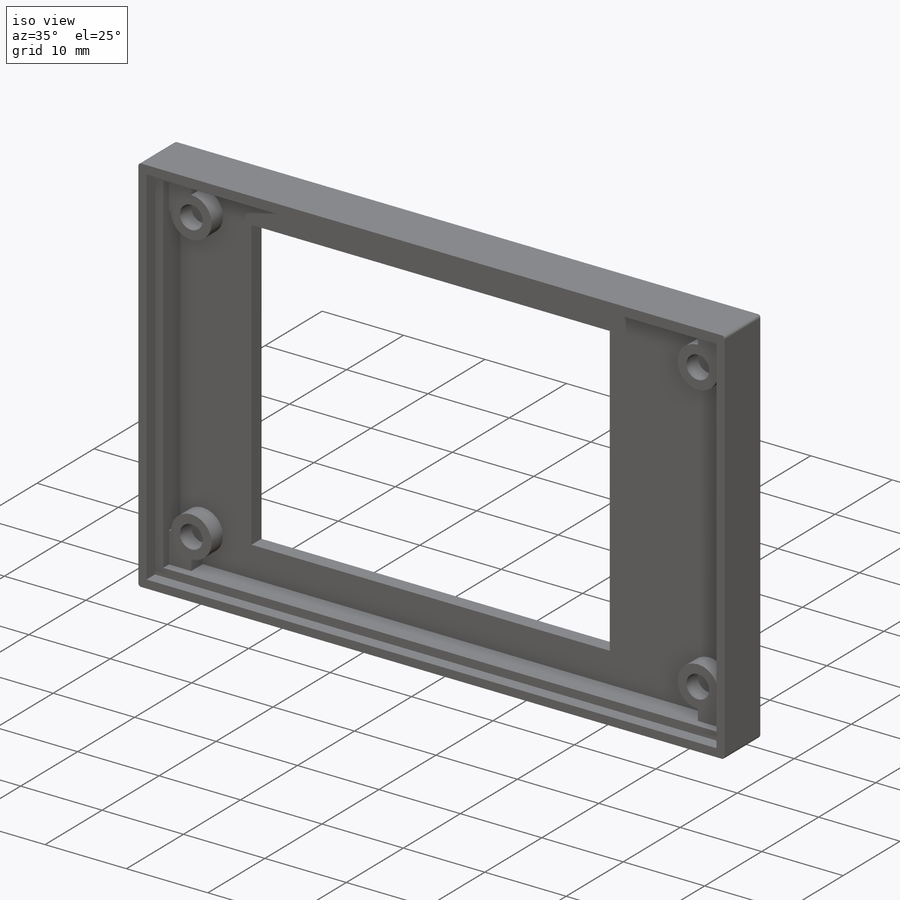
[diagram: iso view]
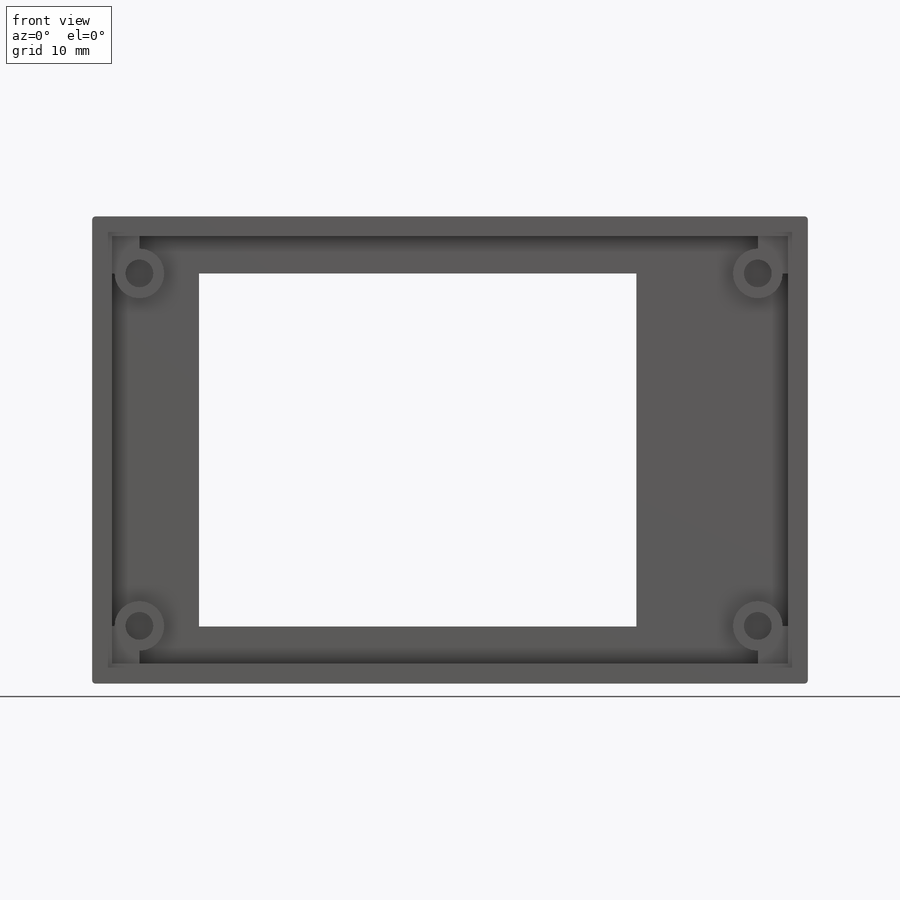
[diagram: front view]
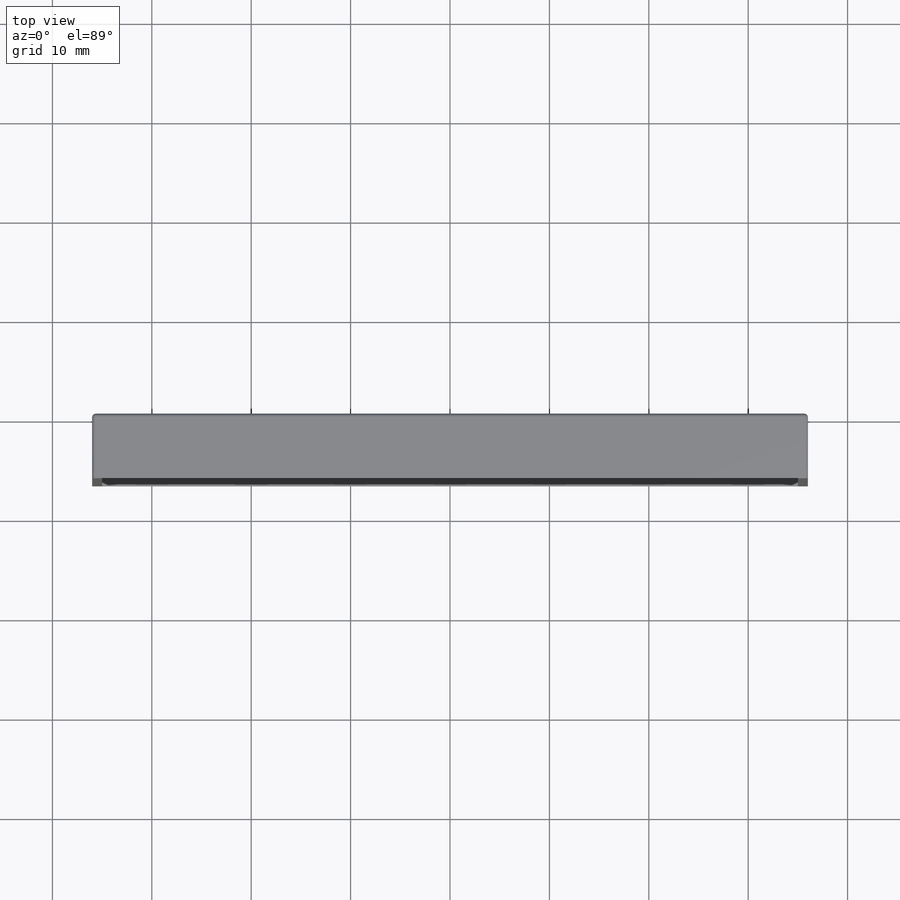
[diagram: top view]
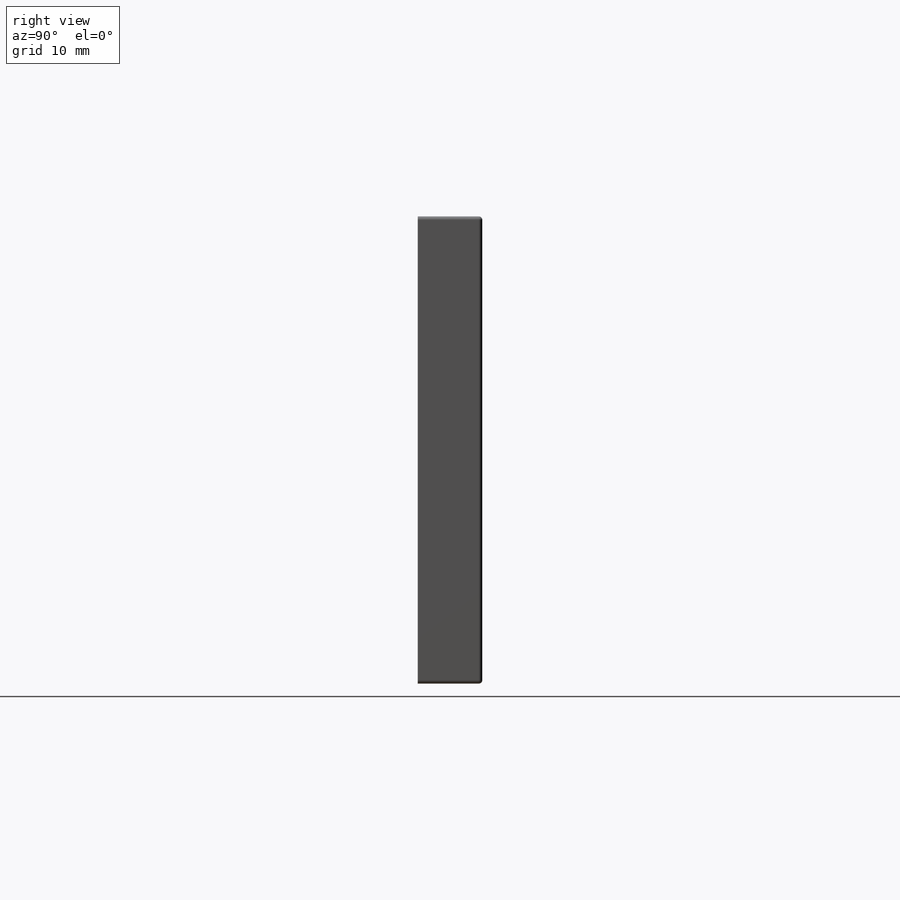
[diagram: right view]
SOLIDWORKS PART (.sldprt)
format: sldprt  version: not decoded by parser v0  size: 349,696 bytes
history: native  units: mm
features: sketch x6, extrude x3, cut_extrude x3, material x1, shell x1, fillet x1 (+12 scaffold rows collapsed)
feature tree (27):
  scaffold x12  (default folders/planes/origin — collapsed)
  material  "ABS"
  sketch  "Sketch1"  dims[D1=72.0mm D2=47.0mm]
  extrude  "Boss-Extrude1"  Depth=6.5mm
  shell  "Shell1"  Thickness=2mm
  sketch  "Sketch2"  dims[D1=35.5mm D2=44.0mm D3=17.75mm D4=10.75mm D5=35.5mm]
  cut_extrude  "Cut-Extrude1"  [1 undecoded]
  sketch  "Sketch3"  dims[D1=5.0mm D2=2.75mm D3=3.75mm D4=2.0 D5=2.0]
  extrude  "Boss-Extrude2"  Depth=2mm
  sketch  "Sketch5"  dims[c1.D3=4.5mm c1.D1=0.0mm c1.D2=0.0mm c2.D3=0.0mm]
  extrude  "Boss-Extrude3"  Depth=2mm
  sketch  "Sketch6"  dims[D1=2.8mm D2=2.8mm D3=2.8mm D4=2.8mm]
  cut_extrude  "Cut-Extrude2"  Depth=2mm
  sketch  "Sketch7"  dims[D1=1.0mm D2=1.0mm]
  cut_extrude  "Cut-Extrude3"  Depth=1.5mm
  fillet  "Fillet1"  Radius=0.35mm
decode coverage: 13 of 14 modeling features carry decoded parameters
note: 1 parameter value undecoded
note: suppression state not decoded; provenance and decode notes live in map.json
